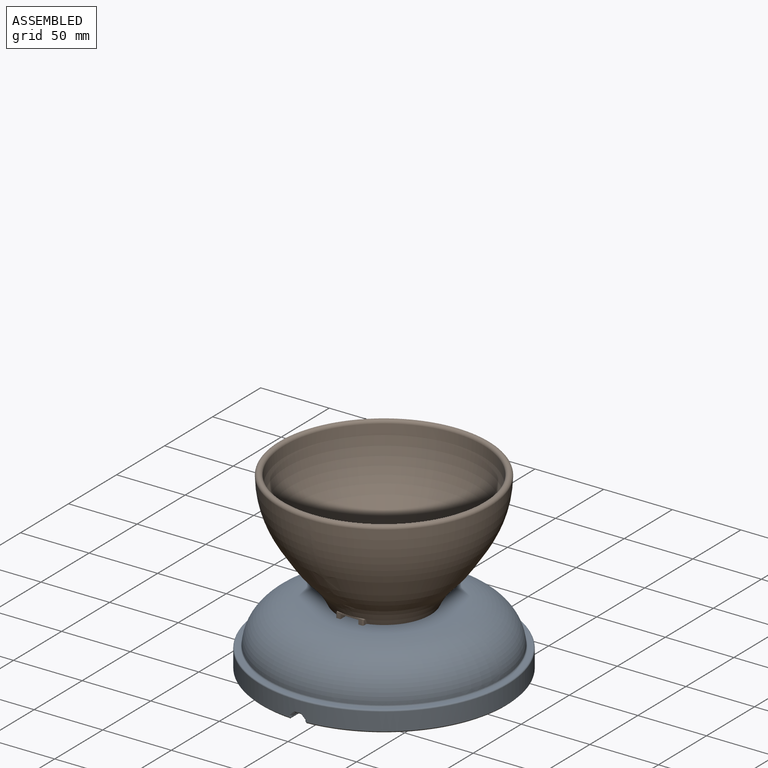
[diagram: assembled view]
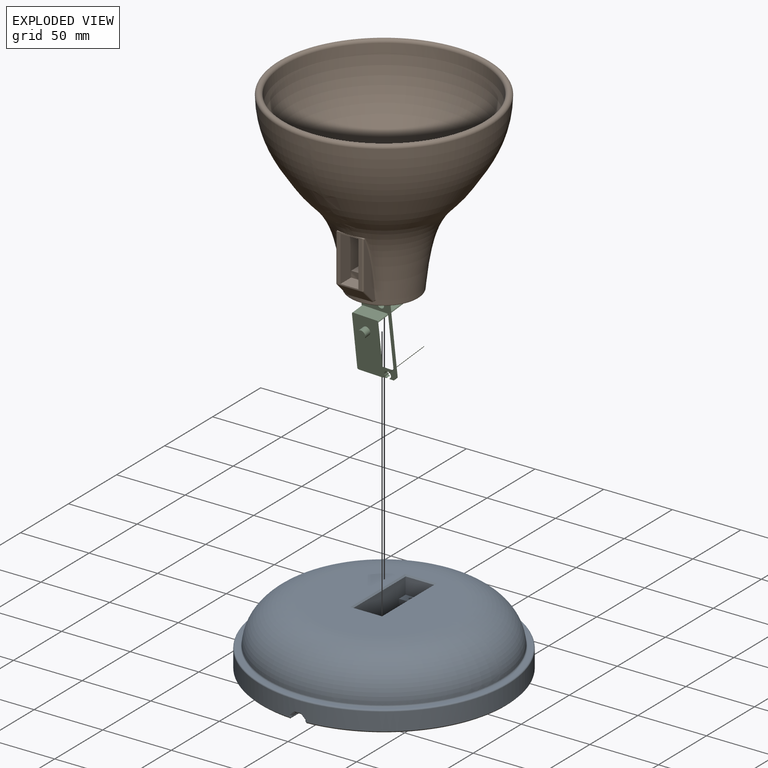
[diagram: exploded view]
GUIDED TOUR — FREECAD ASSEMBLY "Pixar Lamp Robot"

This assembly has 3 components, labeled P0..P2 below (a component is one placed body or linked part; the same part can appear more than once), held together by 0 modeled joints plus 3 derived contact edges. A joint is a constraint between two components; its type names the relative motion it leaves free:
  CONTACT — a derived adjacency edge — the two components touch in the source model (clearance under 2% of the assembly's diagonal); it is measured from the geometry, not a modeled constraint.
Axis/direction vectors are unit vectors and 'through' points are millimeter coordinates, both in the assembly's world frame.

MATES
  1. CONTACT "contact_0_1": P0 <-> P1, contact direction (0.000, 0.000, 1.000) through (12.60, -19.03, 0.00) mm (derived from contact, not a modeled constraint)
  2. CONTACT "contact_0_2": P0 <-> P2, contact direction (0.000, 0.000, 1.000) through (-3.83, -16.42, 31.75) mm (derived from contact, not a modeled constraint)
  3. CONTACT "contact_1_2": P1 <-> P2, contact direction (0.000, 0.000, -1.000) through (7.14, -3.46, -0.31) mm (derived from contact, not a modeled constraint)

ASSEMBLY ORDER
  1. P0 — the base component [order heuristic]
  2. P1 [order heuristic]
  3. P2 [order heuristic]
Order-tag legend:
  [order heuristic] — this assembly is geometrically interlocked (no collision-free removal order exists), so components are listed in mate-graph order; insertion feasibility is not verified.

Of the 3 components, 3 carry a construction recipe — the FreeCAD feature program (sketches with constraints, then the solid features that consume them) that regenerates the part from scratch, quoted from this document or from the linked companion document it references; the rest are supplied as boundary geometry only. The tour below walks the components in assembly order: each is shown spotlighted twice — in the assembled view, then in the exploded view, where a leader line traces a displaced component back to its assembled socket (components that stay in place when exploded have no leader line; saturated green if recipe-attached, orange if geometry-only; every other component desaturated gray) — followed by its recipe or geometry summary and the mates that hold it.
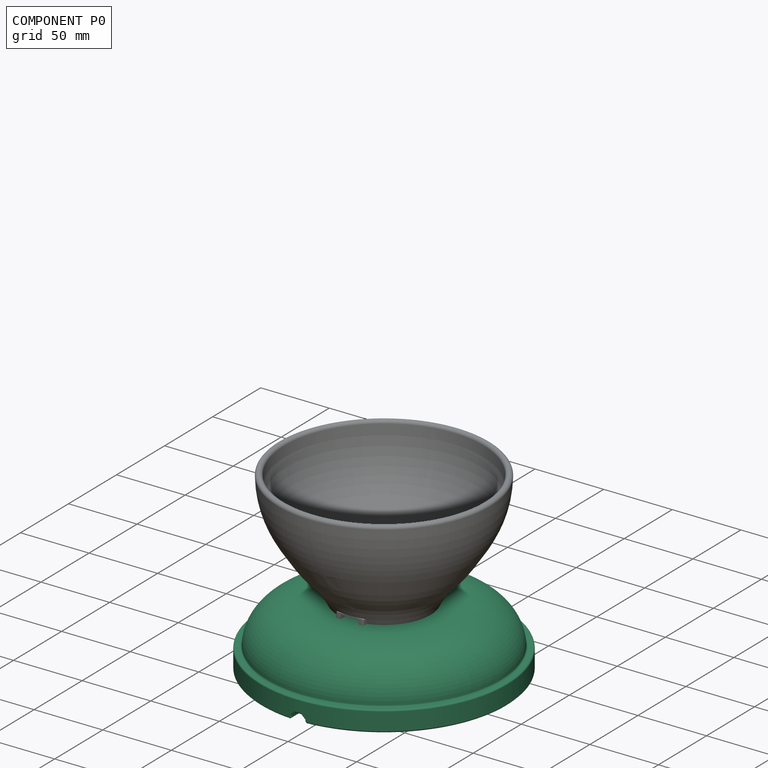
[diagram: component P0 — assembled]
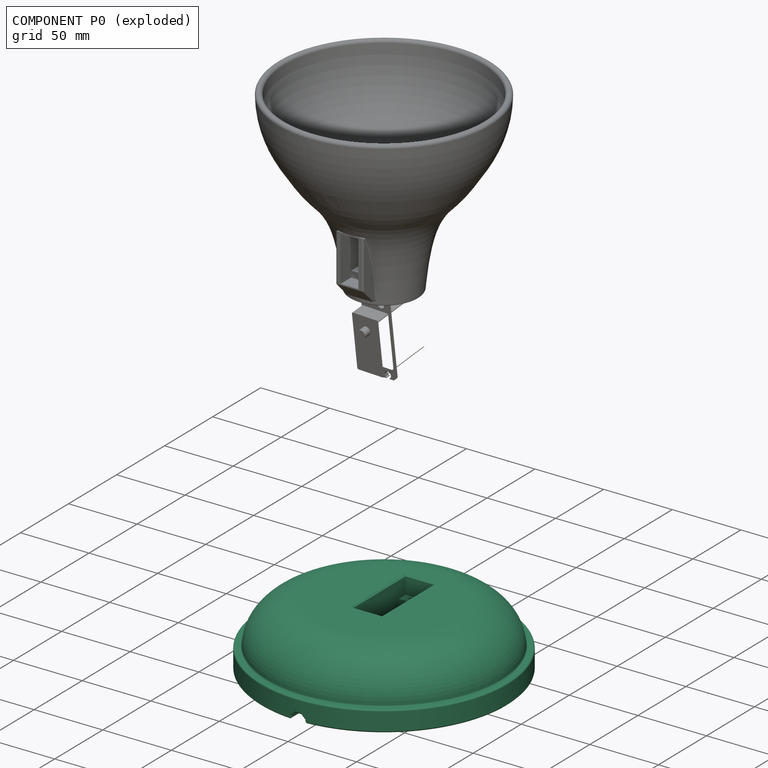
[diagram: component P0 — exploded]
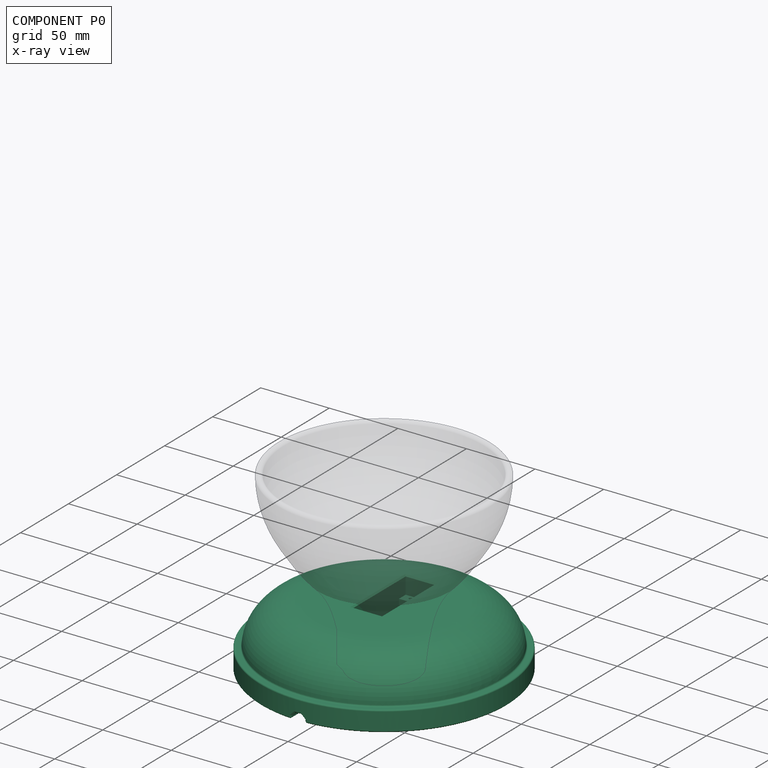
[diagram: component P0 — x-ray view]
COMPONENT P0 — recipe-attached ("Base", modeled in this document).
Held by: resting contact with P1 (derived edge); resting contact with P2 (derived edge).
Construction recipe (the document's own serialized feature program — sketch geometry with constraints, then the solid features built on it; lengths are millimeters unless a unit is written):

FEATURE [Sketcher::SketchObject] Sketch
  ArcFitTolerance = 1e-06
  AttachmentSupport = -> [XZ_Plane007]
  FullyConstrained = true
  MakeInternals = false
  MapMode = 5
  Placement = pos=(0,0,0) rot=(1,0,0;1.5708rad)
  sketch-geometry (10):
    g0: LineSegment StartX=0 StartY=0 StartZ=0 EndX=0 EndY=45 EndZ=0
    g1: LineSegment StartX=0 StartY=0 StartZ=0 EndX=90 EndY=0 EndZ=0
    g2: LineSegment StartX=90 StartY=0 StartZ=0 EndX=90 EndY=15 EndZ=0
    g3: ArcOfEllipse CenterX=50 CenterY=15 CenterZ=0 NormalX=0 NormalY=0 NormalZ=1 MajorRadius=35 MinorRadius=30 AngleXU=0 StartAngle=0 EndAngle=1.5708
    g4: LineSegment [constr] StartX=85 StartY=15 StartZ=0 EndX=15 EndY=15 EndZ=0
    g5: LineSegment [constr] StartX=50 StartY=45 StartZ=0 EndX=50 EndY=-15 EndZ=0
    g6: GeomPoint [constr] X=68.0278 Y=15 Z=0
    g7: GeomPoint [constr] X=31.9722 Y=15 Z=0
    g8: LineSegment StartX=90 StartY=15 StartZ=0 EndX=85 EndY=15 EndZ=0
    g9: LineSegment StartX=0 StartY=45 StartZ=0 EndX=50 EndY=45 EndZ=0
  constraints (21):
    c: Coincident(g0,g-1)
    c: PointOnObject(g0,g-2)
    c: Coincident(g1,g0)
    c: PointOnObject(g1,g-1)
    c: Coincident(g2,g1)
    c: Vertical(g2)
    c: InternalAlignment(g4-g7 -> g3) x4
    c: Coincident(g8,g2)
    c: Horizontal(g8)
    c: Coincident(g3,g8)
    c: Horizontal(g4)
    c: Coincident(g9,g0)
    c: Horizontal(g9)
    c: Coincident(g3,g9)
    c: Coincident(g5,g3)
    c: Distance(g1,g1) = 90
    c: DistanceY(g0,g0) = 45
    c: DistanceX(g9,g9) = 50
    c: Coincident(g3,g4)
    c: Distance(g8,g8) = 5
    c: Distance(g2,g2) = 15
FEATURE [PartDesign::Revolution] Revolution
  Angle = 360
  Angle2 = 60
  Axis = (0,2e-16,1)
  Base = (0,0,0)
  Placement = pos=(0,0,0) rot=(1,0,0;1.5708rad)
  Profile = -> Sketch
  ReferenceAxis = -> Sketch [V_Axis]
  Reversed = true
  Suppressed = false
  Type = 0
FEATURE [PartDesign::Fillet] Fillet
  Base = -> Revolution [Face1]
  BaseFeature = -> Revolution
  Placement = pos=(0,0,0) rot=(1,0,0;1.5708rad)
  Radius = 1
  SupportTransform = false
  Suppressed = false
  UseAllEdges = false
FEATURE [Sketcher::SketchObject] Sketch020  label="base servo body cutout"
  ArcFitTolerance = 1e-06
  FullyConstrained = false
  MakeInternals = false
  MapMode = 5
  Placement = pos=(0,1e-14,45) rot=(0,0,1;3.14159rad)
  sketch-geometry (9):
    g0: LineSegment StartX=-10.5 StartY=-37.5 StartZ=0 EndX=10.5 EndY=-37.5 EndZ=0
    g1: LineSegment StartX=10.5 StartY=-37.5 StartZ=0 EndX=10.5 EndY=17.5 EndZ=0
    g2: LineSegment StartX=-10.5 StartY=17.5 StartZ=0 EndX=-10.5 EndY=-37.5 EndZ=0
    g3: LineSegment StartX=10.5 StartY=17.5 StartZ=0 EndX=0 EndY=17.5 EndZ=0
    g4: LineSegment StartX=0 StartY=17.5 StartZ=0 EndX=-10.5 EndY=17.5 EndZ=0
    g5: LineSegment [constr] StartX=-10.5 StartY=10 StartZ=0 EndX=10.5 EndY=10 EndZ=0
    g6: LineSegment [constr] StartX=-10.5 StartY=-30 StartZ=0 EndX=10.5 EndY=-30 EndZ=0
    g7: LineSegment [constr] StartX=-5.40577 StartY=-30 StartZ=0 EndX=-5.40577 EndY=-37.5 EndZ=0
    g8: LineSegment [constr] StartX=-2.00214 StartY=10 StartZ=0 EndX=-2.00214 EndY=17.5 EndZ=0
  constraints (29):
    c: Coincident(g0,g1)
    c: Coincident(g1,g3)
    c: Coincident(g4,g2)
    c: Coincident(g2,g0)
    c: Horizontal(g0)
    c: Vertical(g1)
    c: Vertical(g2)
    c: DistanceY(g1,g1) = 55
    c: Distance(g3,g4) = 21
    c: Coincident(g3,g4)
    c: Horizontal(g3)
    c: Horizontal(g4)
    c: Equal(g4,g3)
    c: PointOnObject(g3,g-2)
    c: PointOnObject(g5,g2)
    c: PointOnObject(g5,g1)
    c: Horizontal(g5)
    c: PointOnObject(g6,g2)
    c: PointOnObject(g6,g1)
    c: Horizontal(g6)
    c: PointOnObject(g7,g6)
    c: PointOnObject(g7,g0)
    c: PointOnObject(g8,g5)
    c: PointOnObject(g8,g3)
    c: Vertical(g8)
    c: Equal(g8,g7)
    c: Perpendicular(g0,g7)
    c: Distance(g-1,g5) = 10
    c: DistanceY(g6,g5) = 40
FEATURE [PartDesign::Pocket] Pocket
  BaseFeature = -> Fillet
  Direction = (0,0,-1)
  Length = 13
  Length2 = 5
  Placement = pos=(0,0,0) rot=(1,0,0;1.5708rad)
  Profile = -> Sketch020
  ReferenceAxis = -> Sketch020 [N_Axis]
  Suppressed = false
  Type = 0
FEATURE [Sketcher::SketchObject] Sketch025
  ArcFitTolerance = 1e-06
  AttachmentSupport = -> [Pocket]
  ExternalGeometry = -> [Pocket]
  FullyConstrained = true
  MakeInternals = false
  MapMode = 5
  Placement = pos=(0,0,32) rot=(0,0,1;3.14159rad)
  sketch-geometry (8):
    g0: LineSegment StartX=-10.5 StartY=-30.5 StartZ=0 EndX=10.5 EndY=-30.5 EndZ=0
    g1: LineSegment StartX=10.5 StartY=-30.5 StartZ=0 EndX=10.5 EndY=10.5 EndZ=0
    g2: LineSegment StartX=10.5 StartY=10.5 StartZ=0 EndX=-1.8e-15 EndY=10.5 EndZ=0
    g3: LineSegment StartX=-10.5 StartY=10.5 StartZ=0 EndX=-10.5 EndY=-30.5 EndZ=0
    g4: LineSegment [constr] StartX=-10.5 StartY=-37.5 StartZ=0 EndX=-10.5 EndY=-30.5 EndZ=0
    g5: LineSegment [constr] StartX=-10.5 StartY=10.5 StartZ=0 EndX=-10.5 EndY=17.5 EndZ=0
    g6: LineSegment [constr] StartX=-10.5 StartY=17.5 StartZ=0 EndX=10.5 EndY=17.5 EndZ=0
    g7: LineSegment StartX=-1.8e-15 StartY=10.5 StartZ=0 EndX=-10.5 EndY=10.5 EndZ=0
  constraints (21):
    c: Coincident(g0,g1)
    c: Coincident(g7,g3)
    c: Coincident(g3,g0)
    c: Horizontal(g0)
    c: Horizontal(g2)
    c: Vertical(g1)
    c: Vertical(g3)
    c: PointOnObject(g0,g-3)
    c: PointOnObject(g1,g-4)
    c: Coincident(g4,g-3)
    c: Coincident(g4,g0)
    c: Coincident(g5,g7)
    c: Coincident(g5,g-3)
    c: Equal(g5,g4)
    c: Coincident(g6,g5)
    c: Coincident(g6,g-4)
    c: DistanceY(g1,g1) = 41
    c: Equal(g7,g2)
    c: Horizontal(g7)
    c: Coincident(g7,g2)
    c: Coincident(g2,g1)
FEATURE [PartDesign::Pocket] Pocket012
  BaseFeature = -> Pocket
  Direction = (0,0,-1)
  Length = 0
  Length2 = 5
  Placement = pos=(0,0,0) rot=(1,0,0;1.5708rad)
  Profile = -> Sketch025
  ReferenceAxis = -> Sketch025 [N_Axis]
  Suppressed = false
  Type = 3
  UpToFace = -> Pocket [Face6]
FEATURE [Sketcher::SketchObject] Sketch026
  ArcFitTolerance = 1e-06
  AttachmentSupport = -> [Pocket012]
  FullyConstrained = true
  MakeInternals = false
  MapMode = 5
  Placement = pos=(0,0,32) rot=(0,0,1;3.14159rad)
  sketch-geometry (14):
    g0: LineSegment [constr] StartX=-5 StartY=-34.75 StartZ=0 EndX=5 EndY=-34.75 EndZ=0
    g1: LineSegment [constr] StartX=5 StartY=14.75 StartZ=0 EndX=-5 EndY=14.75 EndZ=0
    g2: LineSegment [constr] StartX=-5 StartY=14.75 StartZ=0 EndX=-5 EndY=10 EndZ=0
    g3: LineSegment [constr] StartX=5 StartY=10 StartZ=0 EndX=5 EndY=14.75 EndZ=0
    g4: LineSegment [constr] StartX=-5 StartY=10 StartZ=0 EndX=-5 EndY=-30 EndZ=0
    g5: LineSegment [constr] StartX=-5 StartY=-30 StartZ=0 EndX=-5 EndY=-34.75 EndZ=0
    g6: LineSegment [constr] StartX=5 StartY=-34.75 StartZ=0 EndX=5 EndY=-30 EndZ=0
    g7: LineSegment [constr] StartX=5 StartY=-30 StartZ=0 EndX=5 EndY=10 EndZ=0
    g8: LineSegment [constr] StartX=-5 StartY=10 StartZ=0 EndX=5 EndY=10 EndZ=0
    g9: LineSegment [constr] StartX=-5 StartY=-30 StartZ=0 EndX=5 EndY=-30 EndZ=0
    g10: Circle CenterX=5 CenterY=14.75 CenterZ=0 NormalX=0 NormalY=0 NormalZ=1 AngleXU=0 Radius=1.125
    g11: Circle CenterX=-5 CenterY=14.75 CenterZ=0 NormalX=0 NormalY=0 NormalZ=1 AngleXU=0 Radius=1.125
    g12: Circle CenterX=5 CenterY=-34.75 CenterZ=0 NormalX=0 NormalY=0 NormalZ=1 AngleXU=0 Radius=1.125
    g13: Circle CenterX=-5 CenterY=-34.75 CenterZ=0 NormalX=0 NormalY=0 NormalZ=1 AngleXU=0 Radius=1.125
  constraints (35):
    c: Coincident(g0,g6)
    c: Coincident(g3,g1)
    c: Coincident(g1,g2)
    c: Coincident(g5,g0)
    c: Horizontal(g0)
    c: Distance(g2,g5) = 49.5
    c: DistanceX(g1,g1) = 10
    c: Symmetric(g1,g3,g-2)
    c: Coincident(g2,g4)
    c: Vertical(g2)
    c: Coincident(g7,g3)
    c: Vertical(g3)
    c: Coincident(g4,g5)
    c: Vertical(g4)
    c: Vertical(g5)
    c: Coincident(g6,g7)
    c: Vertical(g6)
    c: Vertical(g7)
    c: Coincident(g8,g2)
    c: Coincident(g8,g3)
    c: Coincident(g9,g4)
    c: Coincident(g9,g6)
    c: Horizontal(g9)
    c: Horizontal(g8)
    c: Equal(g3,g6)
    c: DistanceY(g7,g7) = 40
    c: Distance(g-1,g8) = 10
    c: Coincident(g10,g1)
    c: Coincident(g11,g1)
    c: Coincident(g12,g0)
    c: Coincident(g13,g0)
    c: Equal(g11,g10)
    c: Equal(g13,g12)
    c: Equal(g10,g12)
    c: Diameter(g10) = 2.25
FEATURE [PartDesign::Pocket] Pocket013
  BaseFeature = -> Pocket012
  Direction = (0,0,-1)
  Length = 10
  Length2 = 5
  Placement = pos=(0,0,0) rot=(1,0,0;1.5708rad)
  Profile = -> Sketch026
  ReferenceAxis = -> Sketch026 [N_Axis]
  Suppressed = false
  Type = 0
FEATURE [Sketcher::SketchObject] Sketch027
  ArcFitTolerance = 1e-06
  AttachmentSupport = -> [YZ_Plane007]
  ExternalGeometry = -> [Pocket013]
  FullyConstrained = true
  MakeInternals = false
  MapMode = 5
  Placement = pos=(0,0,0) rot=(0.57735,0.57735,0.57735;2.0944rad)
  sketch-geometry (16):
    g0: LineSegment [constr] StartX=-10.5 StartY=32 StartZ=0 EndX=-17.5 EndY=32 EndZ=0
    g1: LineSegment [constr] StartX=-17.5 StartY=32 StartZ=0 EndX=-17.5 EndY=25 EndZ=0
    g2: LineSegment [constr] StartX=-17.5 StartY=25 StartZ=0 EndX=-10.5 EndY=25 EndZ=0
    g3: LineSegment [constr] StartX=-10.5 StartY=25 StartZ=0 EndX=-10.5 EndY=32 EndZ=0
    g4: LineSegment [constr] StartX=37.5 StartY=32 StartZ=0 EndX=30.5 EndY=32 EndZ=0
    g5: LineSegment [constr] StartX=30.5 StartY=32 StartZ=0 EndX=30.5 EndY=25 EndZ=0
    g6: LineSegment [constr] StartX=30.5 StartY=25 StartZ=0 EndX=37.5 EndY=25 EndZ=0
    g7: LineSegment [constr] StartX=37.5 StartY=25 StartZ=0 EndX=37.5 EndY=32 EndZ=0
    g8: LineSegment StartX=-10.5 StartY=25 StartZ=0 EndX=-17.5 EndY=18 EndZ=0
    g9: LineSegment StartX=-17.5 StartY=18 StartZ=0 EndX=-17.5 EndY=0 EndZ=0
    g10: LineSegment StartX=-17.5 StartY=0 StartZ=0 EndX=-10.5 EndY=7.1e-15 EndZ=0
    g11: LineSegment StartX=-10.5 StartY=7.1e-15 StartZ=0 EndX=-10.5 EndY=25 EndZ=0
    g12: LineSegment StartX=30.5 StartY=-7.1e-15 StartZ=0 EndX=37.5 EndY=-7.1e-15 EndZ=0
    g13: LineSegment StartX=37.5 StartY=-7.1e-15 StartZ=0 EndX=37.5 EndY=18 EndZ=0
    g14: LineSegment StartX=30.5 StartY=25 StartZ=0 EndX=30.5 EndY=-7.1e-15 EndZ=0
    g15: LineSegment StartX=30.5 StartY=25 StartZ=0 EndX=37.5 EndY=18 EndZ=0
  constraints (40):
    c: Coincident(g0,g1)
    c: Coincident(g1,g2)
    c: Coincident(g2,g3)
    c: Coincident(g3,g0)
    c: Horizontal(g0)
    c: Horizontal(g2)
    c: Vertical(g1)
    c: Vertical(g3)
    c: Coincident(g0,g-4)
    c: PointOnObject(g1,g-3)
    c: Coincident(g4,g5)
    c: Coincident(g5,g6)
    c: Coincident(g6,g7)
    c: Coincident(g7,g4)
    c: Horizontal(g4)
    c: Horizontal(g6)
    c: Vertical(g5)
    c: Vertical(g7)
    c: Coincident(g4,g-6)
    c: PointOnObject(g5,g-5)
    c: Equal(g6,g7)
    c: Equal(g2,g3)
    c: Angle(g-1,g8) = -2.35619
    c: Coincident(g8,g2)
    c: PointOnObject(g8,g-3)
    c: Coincident(g8,g9)
    c: Coincident(g9,g-3)
    c: Coincident(g9,g10)
    c: Coincident(g10,g-4)
    c: Coincident(g10,g11)
    c: Coincident(g11,g2)
    c: Coincident(g12,g13)
    c: Coincident(g14,g12)
    c: Horizontal(g12)
    c: Coincident(g12,g-5)
    c: Angle(g-1,g15) = -0.785398
    c: Coincident(g15,g5)
    c: Coincident(g13,g15)
    c: Coincident(g14,g5)
    c: Tangent(g7,g13)
FEATURE [PartDesign::Pocket] Pocket014
  BaseFeature = -> Pocket013
  Direction = (-1,0,0)
  Length = 21
  Length2 = 5
  Midplane = true
  Placement = pos=(0,0,0) rot=(1,0,0;1.5708rad)
  Profile = -> Sketch027
  ReferenceAxis = -> Sketch027 [N_Axis]
  Suppressed = false
  Type = 0
FEATURE [PartDesign::Chamfer] Chamfer004
  Angle = 45
  Base = -> Pocket014 [Edge20,Edge19,Edge23,Edge22,Edge21]
  BaseFeature = -> Pocket014
  ChamferType = 0
  FlipDirection = false
  Placement = pos=(0,0,0) rot=(1,0,0;1.5708rad)
  Size = 1
  Size2 = 1
  SupportTransform = false
  Suppressed = false
  UseAllEdges = false
FEATURE [Sketcher::SketchObject] Sketch028
  ArcFitTolerance = 1e-06
  AttachmentSupport = -> [Chamfer004]
  FullyConstrained = true
  MakeInternals = false
  MapMode = 5
  Placement = pos=(0,-17.5,3.8e-15) rot=(-1,0,0;1.5708rad)
  sketch-geometry (9):
    g0: LineSegment StartX=5 StartY=2.07107 StartZ=0 EndX=2.07107 EndY=5 EndZ=0
    g1: LineSegment StartX=2.07107 StartY=5 StartZ=0 EndX=-2.07107 EndY=5 EndZ=0
    g2: LineSegment StartX=-2.07107 StartY=5 StartZ=0 EndX=-5 EndY=2.07107 EndZ=0
    g3: LineSegment StartX=-5 StartY=2.07107 StartZ=0 EndX=-5 EndY=-2.07107 EndZ=0
    g4: LineSegment StartX=-5 StartY=-2.07107 StartZ=0 EndX=-2.07107 EndY=-5 EndZ=0
    g5: LineSegment StartX=-2.07107 StartY=-5 StartZ=0 EndX=2.07107 EndY=-5 EndZ=0
    g6: LineSegment StartX=2.07107 StartY=-5 StartZ=0 EndX=5 EndY=-2.07107 EndZ=0
    g7: LineSegment StartX=5 StartY=-2.07107 StartZ=0 EndX=5 EndY=2.07107 EndZ=0
    g8: Circle [constr] CenterX=0 CenterY=0 CenterZ=0 NormalX=0 NormalY=0 NormalZ=1 AngleXU=0 Radius=5.41196
  constraints (20):
    c: Coincident(g0,g1)
    c: Coincident(g1,g2)
    c: Coincident(g2,g3)
    c: Coincident(g3,g4)
    c: Coincident(g4,g5)
    c: Coincident(g5,g6)
    c: Coincident(g6,g7)
    c: Coincident(g7,g0)
    c: Equal(g0, g1-g7) x7
    c: PointOnObject(g0,g8)
    c: PointOnObject(g1,g8)
    c: PointOnObject(g2,g8)
    c: PointOnObject(g3,g8)
    c: PointOnObject(g4,g8)
    c: PointOnObject(g5,g8)
    c: PointOnObject(g6,g8)
    c: PointOnObject(g7,g8)
    c: Coincident(g8,g-1)
    c: Horizontal(g5)
    c: DistanceX(g3,g6) = 10
FEATURE [PartDesign::Pocket] Pocket015
  BaseFeature = -> Chamfer004
  Direction = (0,-1,-2e-16)
  Length = 23
  Length2 = 5
  Placement = pos=(0,0,0) rot=(1,0,0;1.5708rad)
  Profile = -> Sketch028
  ReferenceAxis = -> Sketch028 [N_Axis]
  Suppressed = false
  Type = 2
FEATURE [PartDesign::Chamfer] Chamfer
  Angle = 45
  Base = -> Pocket015 [Face24,Edge94,Edge95,Edge96,Edge97,Edge98]
  BaseFeature = -> Pocket015
  ChamferType = 0
  FlipDirection = false
  Placement = pos=(0,0,0) rot=(1,0,0;1.5708rad)
  Size = 1
  Size2 = 1
  SupportTransform = false
  Suppressed = false
  UseAllEdges = false
FEATURE [PartDesign::Body] Body
  AllowCompound = false
  Group = -> [Sketch,Revolution,Fillet,Sketch020,Pocket,Sketch025,Pocket012,Sketch026,Pocket013,Sketch027,Pocket014,Chamfer004,Sketch028,Pocket015,Chamfer]
  Origin = -> Origin007
  Tip = -> Chamfer
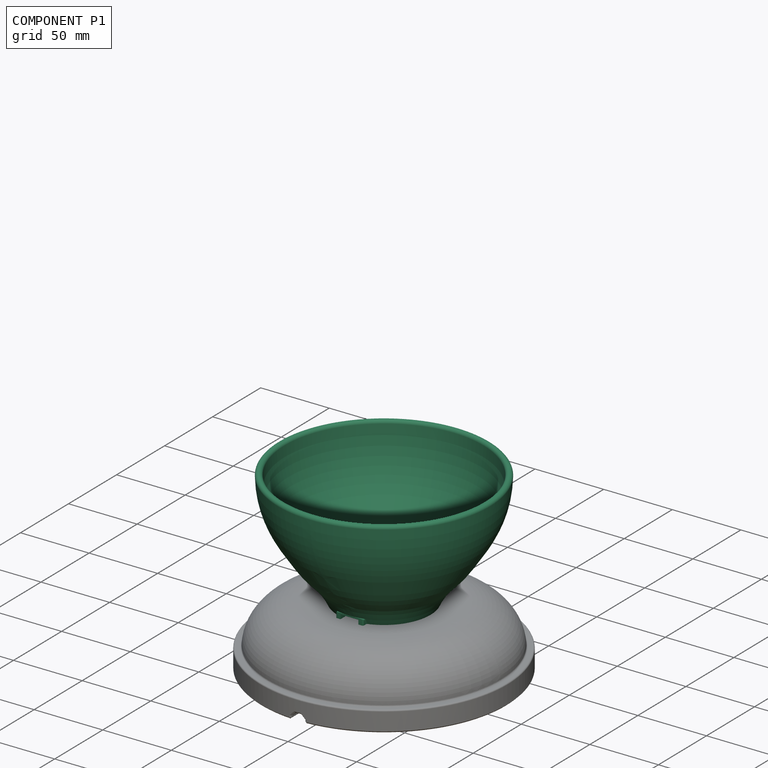
[diagram: component P1 — assembled]
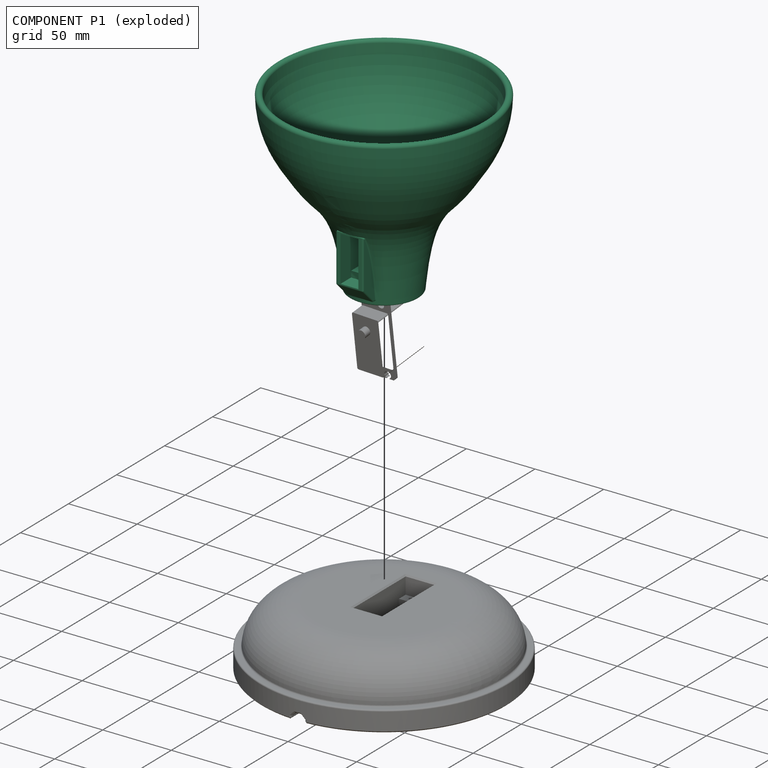
[diagram: component P1 — exploded]
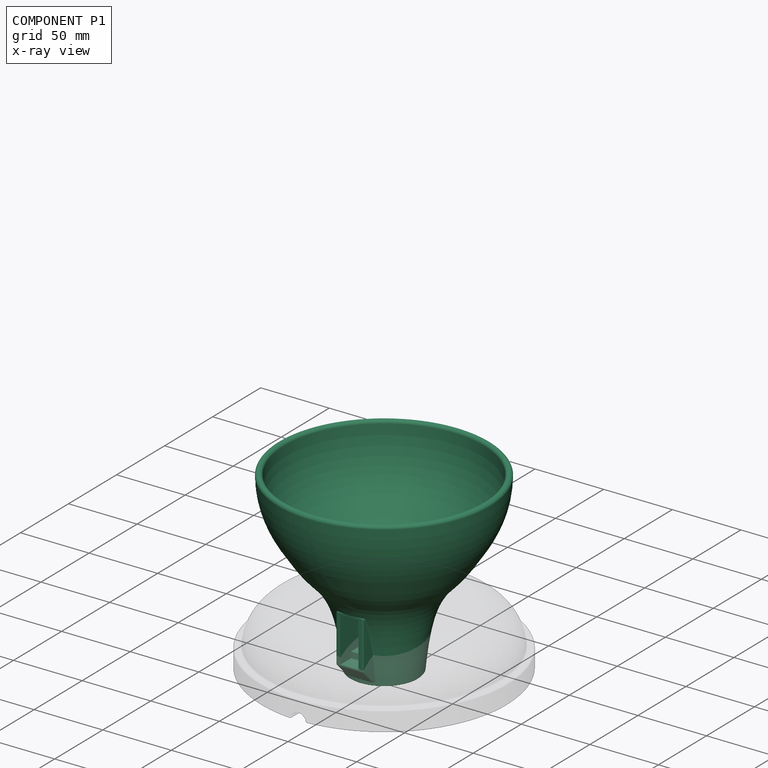
[diagram: component P1 — x-ray view]
COMPONENT P1 — recipe-attached ("Lampshade001", modeled in this document).
Held by: resting contact with P0 (derived edge); resting contact with P2 (derived edge).
Construction recipe (the document's own serialized feature program — sketch geometry with constraints, then the solid features built on it; lengths are millimeters unless a unit is written):

FEATURE [Sketcher::SketchObject] Sketch010
  ArcFitTolerance = 0
  FullyConstrained = false
  MakeInternals = false
  Placement = pos=(0,0,0) rot=(0,1,0;1.5708rad)
  sketch-geometry (33):
    g0: GeomPoint [constr] X=-127.837 Y=-77.1037 Z=0
    g1: BSplineCurve PolesCount=7 KnotsCount=5 Degree=3 IsPeriodic=0
    g2-g8: Circle [constr] x7 (B-spline internal-alignment scaffolding for g1; pole/knot coordinates omitted)
    g9-g13: GeomPoint [constr] x5 (B-spline internal-alignment scaffolding for g1; pole/knot coordinates omitted)
    g14: LineSegment [constr] StartX=-127.837 StartY=-77.1037 StartZ=0 EndX=-127.837 EndY=-72.4339 EndZ=0
    g15: BSplineCurve PolesCount=6 KnotsCount=4 Degree=3 IsPeriodic=0
    g16: ArcOfCircle CenterX=-127.837 CenterY=-74.7688 CenterZ=0 NormalX=0 NormalY=0 NormalZ=1 AngleXU=0 Radius=2.33488 StartAngle=1.5708 EndAngle=4.71239
    g17: LineSegment StartX=0 StartY=0 StartZ=0 EndX=0 EndY=-24.806 EndZ=0
    g18: LineSegment StartX=0 StartY=0 StartZ=0 EndX=-51.1058 EndY=0 EndZ=0
    g19: LineSegment StartX=-51.1058 StartY=0 StartZ=0 EndX=-51.1058 EndY=-33 EndZ=0
    g20: LineSegment StartX=-51.1058 StartY=-33 StartZ=0 EndX=-68.1058 EndY=-33 EndZ=0
    g21: LineSegment StartX=-68.1058 StartY=-33 StartZ=0 EndX=-68.1058 EndY=-35 EndZ=0
    g22: LineSegment StartX=-68.1058 StartY=-35 StartZ=0 EndX=-54.1739 EndY=-35 EndZ=0
    g23-g28: Circle [constr] x6 (B-spline internal-alignment scaffolding for g15; pole/knot coordinates omitted)
    g29-g32: GeomPoint [constr] x4 (B-spline internal-alignment scaffolding for g15; pole/knot coordinates omitted)
  constraints (53):
    c: Block(g1)
    c: InternalAlignment(g2,g1)
    c: Weight(g2) = 1
    c: InternalAlignment(g3,g1)
    c: Equal(g3,g2)
    c: InternalAlignment(g4,g1)
    c: Equal(g4,g2)
    c: InternalAlignment(g5,g1)
    c: Equal(g5,g2)
    c: InternalAlignment(g6,g1)
    c: Equal(g6,g2)
    c: InternalAlignment(g7,g1)
    c: Equal(g7,g2)
    c: InternalAlignment(g8,g1)
    c: Equal(g8,g2)
    c: InternalAlignment(g9-g13 -> g1) x5
    c: Coincident(g14,g1)
    c: Vertical(g14)
    c: Block(g15)
    c: PointOnObject(g15,g16)
    c: PointOnObject(g16,g14)
    c: Coincident(g16,g14)
    c: Coincident(g16,g1)
    c: Coincident(g17,g-1)
    c: Coincident(g17,g1)
    c: Vertical(g17)
    c: Coincident(g18,g17)
    c: PointOnObject(g18,g-1)
    c: Coincident(g19,g18)
    c: Vertical(g19)
    c: Distance(g19) = 33  'Webcam Carveout Radius'
    c: Coincident(g20,g19)
    c: Horizontal(g20)
    c: Coincident(g21,g20)
    c: Vertical(g21)
    c: Coincident(g22,g21)
    c: Horizontal(g22)
    c: Distance(g21) = 2
    c: Distance(g20,g19) = 17
    c: Coincident(g15,g22)
    c: InternalAlignment(g23,g15)
    c: Weight(g23) = 1
    c: InternalAlignment(g24,g15)
    c: Equal(g24,g23)
    c: InternalAlignment(g25,g15)
    c: Equal(g25,g23)
    c: InternalAlignment(g26,g15)
    c: Equal(g26,g23)
    c: InternalAlignment(g27,g15)
    c: Equal(g27,g23)
    c: InternalAlignment(g28,g15)
    c: Equal(g28,g23)
    c: InternalAlignment(g29-g32 -> g15) x4
FEATURE [PartDesign::Revolution] Revolution001
  Angle = 360
  Angle2 = 60
  Axis = (0,0,-1)
  Base = (0,0,0)
  Placement = pos=(0,0,0) rot=(0,1,0;1.5708rad)
  Profile = -> Sketch010
  ReferenceAxis = -> Sketch010 [H_Axis]
  Reversed = true
  Suppressed = false
  Type = 0
FEATURE [Sketcher::SketchObject] Sketch011  label="Screw Posts"
  ArcFitTolerance = 0
  AttachmentOffset = pos=(0,0,0) rot=(0,0,1;1.5708rad)
  AttachmentSupport = -> [Revolution001]
  FullyConstrained = true
  MakeInternals = false
  MapMode = 5
  Placement = pos=(5.6e-15,0,51.1058) rot=(0,0,1;0rad)
  sketch-geometry (7):
    g0: Circle [constr] CenterX=0 CenterY=0 CenterZ=0 NormalX=0 NormalY=0 NormalZ=1 AngleXU=0 Radius=21
    g1: GeomPoint [constr] X=-21 Y=0 Z=0
    g2: GeomPoint [constr] X=0 Y=21 Z=0
    g3: GeomPoint [constr] X=21 Y=0 Z=0
    g4: Circle CenterX=0 CenterY=21 CenterZ=0 NormalX=0 NormalY=0 NormalZ=1 AngleXU=0 Radius=5
    g5: Circle CenterX=21 CenterY=0 CenterZ=0 NormalX=0 NormalY=0 NormalZ=1 AngleXU=0 Radius=5
    g6: Circle CenterX=-21 CenterY=0 CenterZ=0 NormalX=0 NormalY=0 NormalZ=1 AngleXU=0 Radius=5
  constraints (14):
    c: Coincident(g0,g-1)
    c: Diameter(g0) = 42
    c: PointOnObject(g1,g0)
    c: PointOnObject(g1,g-1)
    c: PointOnObject(g2,g0)
    c: PointOnObject(g2,g-2)
    c: PointOnObject(g3,g0)
    c: PointOnObject(g3,g-1)
    c: Coincident(g4,g2)
    c: Coincident(g5,g3)
    c: Coincident(g6,g1)
    c: Diameter(g6) = 10
    c: Equal(g6,g4)
    c: Equal(g4,g5)
FEATURE [PartDesign::Pad] Pad003  label="PCB Mounting Posts"
  BaseFeature = -> Revolution001
  Direction = (0,0,1)
  Length = 5
  Length2 = 10
  Placement = pos=(0,0,0) rot=(0,1,0;1.5708rad)
  Profile = -> Sketch011
  ReferenceAxis = -> Sketch011 [N_Axis]
  Suppressed = false
  Type = 0
FEATURE [Sketcher::SketchObject] Sketch012  label="Holes for PCB Posts"
  ArcFitTolerance = 0
  AttachmentSupport = -> [Pad003]
  ExternalGeometry = -> [Pad003]
  FullyConstrained = true
  MakeInternals = false
  MapMode = 5
  Placement = pos=(0,0,56.1058) rot=(0,0,-1;1.5708rad)
  sketch-geometry (3):
    g0: Circle CenterX=0 CenterY=-21 CenterZ=0 NormalX=0 NormalY=0 NormalZ=1 AngleXU=0 Radius=0.875
    g1: Circle CenterX=0 CenterY=21 CenterZ=0 NormalX=0 NormalY=0 NormalZ=1 AngleXU=0 Radius=0.875
    g2: Circle CenterX=-21 CenterY=1.78e-14 CenterZ=0 NormalX=0 NormalY=0 NormalZ=1 AngleXU=0 Radius=0.875
  constraints (6):
    c: Coincident(g0,g-3)
    c: Coincident(g1,g-4)
    c: Coincident(g2,g-5)
    c: Equal(g0,g1)
    c: Equal(g1,g2)
    c: Diameter(g2) = 1.75
FEATURE [PartDesign::Pocket] Pocket005
  BaseFeature = -> Pad003
  Direction = (0,0,-1)
  Length = 7
  Length2 = 5
  Placement = pos=(0,0,0) rot=(0,1,0;1.5708rad)
  Profile = -> Sketch012
  ReferenceAxis = -> Sketch012 [N_Axis]
  Suppressed = false
  Type = 0
FEATURE [PartDesign::Chamfer] Chamfer002
  Angle = 45
  Base = -> Pocket005 [Edge10]
  BaseFeature = -> Pocket005
  ChamferType = 0
  FlipDirection = false
  Placement = pos=(0,0,0) rot=(0,1,0;1.5708rad)
  Size = 1
  Size2 = 1
  SupportTransform = false
  Suppressed = false
  UseAllEdges = false
FEATURE [PartDesign::Fillet] Fillet004
  Base = -> Chamfer002 [Edge11,Edge17,Edge12,Edge19,Edge13,Edge21,Edge8]
  BaseFeature = -> Chamfer002
  Placement = pos=(0,0,0) rot=(0,1,0;1.5708rad)
  Radius = 1
  SupportTransform = false
  Suppressed = false
  UseAllEdges = false
FEATURE [PartDesign::Fillet] Fillet005
  Base = -> Fillet004 [Edge18]
  BaseFeature = -> Fillet004
  Placement = pos=(0,0,0) rot=(0,1,0;1.5708rad)
  Radius = 1
  SupportTransform = false
  Suppressed = false
  UseAllEdges = false
FEATURE [Sketcher::SketchObject] Sketch013
  ArcFitTolerance = 0
  AttachmentSupport = -> [YZ_Plane005]
  ExternalGeometry = -> [Sketch010]
  FullyConstrained = true
  MakeInternals = false
  MapMode = 5
  Placement = pos=(0,0,0) rot=(0.57735,0.57735,0.57735;2.0944rad)
  sketch-geometry (5):
    g0: LineSegment StartX=-25.1001 StartY=3.20607 StartZ=0 EndX=-5.99989 EndY=3.20607 EndZ=0
    g1: LineSegment StartX=-5.99989 StartY=3.20607 StartZ=0 EndX=-5.99989 EndY=49.1058 EndZ=0
    g2: LineSegment StartX=-5.99989 StartY=49.1058 StartZ=0 EndX=-35.9999 EndY=49.1058 EndZ=0
    g3: LineSegment StartX=-35.9999 StartY=49.1058 StartZ=0 EndX=-35.9999 EndY=14.1058 EndZ=0
    g4: LineSegment StartX=-35.9999 StartY=14.1058 StartZ=0 EndX=-25.1001 EndY=3.20607 EndZ=0
  constraints (16):
    c: Coincident(g0,g1)
    c: Coincident(g1,g2)
    c: Coincident(g2,g3)
    c: Horizontal(g0)
    c: Horizontal(g2)
    c: Vertical(g1)
    c: Vertical(g3)
    c: Angle(g0,g4) = 2.35619
    c: Coincident(g3,g4)
    c: Coincident(g0,g4)
    c: Distance(g2) = 30
    c: Distance(g3) = 35
    c: PointOnObject(g2,g-3)
    c: PointOnObject(g0,g-3)
    c: DistanceY(g1,g-5) = 2
    c: DistanceX(g0,g-1) = 5.99989
FEATURE [PartDesign::Pad] Pad004  label="Servo mounting point"
  BaseFeature = -> Fillet005
  Direction = (1,0,0)
  Length = 20
  Length2 = 10
  Midplane = true
  Placement = pos=(0,0,0) rot=(0,1,0;1.5708rad)
  Profile = -> Sketch013
  ReferenceAxis = -> Sketch013 [N_Axis]
  Suppressed = false
  Type = 0
FEATURE [Sketcher::SketchObject] Sketch014  label="Servo mounting carveout"
  ArcFitTolerance = 0
  AttachmentSupport = -> [Pad004]
  ExternalGeometry = -> [Pad004]
  FullyConstrained = true
  MakeInternals = false
  MapMode = 5
  Placement = pos=(0,-35.9999,0) rot=(0.57735,0.57735,-0.57735;2.0944rad)
  sketch-geometry (8):
    g0: LineSegment [constr] StartX=-49.1058 StartY=-10 StartZ=0 EndX=-14.1058 EndY=10 EndZ=0
    g1: LineSegment [constr] StartX=-14.1058 StartY=-10 StartZ=0 EndX=-49.1058 EndY=10 EndZ=0
    g2: GeomPoint [constr] X=-31.6058 Y=-6.2e-15 Z=0
    g3: LineSegment StartX=-15.1058 StartY=-6.5 StartZ=0 EndX=-15.1058 EndY=6.5 EndZ=0
    g4: LineSegment StartX=-15.1058 StartY=6.5 StartZ=0 EndX=-48.1058 EndY=6.5 EndZ=0
    g5: LineSegment StartX=-48.1058 StartY=6.5 StartZ=0 EndX=-48.1058 EndY=-6.5 EndZ=0
    g6: LineSegment StartX=-48.1058 StartY=-6.5 StartZ=0 EndX=-15.1058 EndY=-6.5 EndZ=0
    g7: GeomPoint [constr] X=-31.6058 Y=-6.2e-15 Z=0
  constraints (18):
    c: Coincident(g0,g-4)
    c: Coincident(g0,g-7)
    c: Coincident(g1,g-7)
    c: Coincident(g1,g-6)
    c: PointOnObject(g2,g0)
    c: PointOnObject(g2,g1)
    c: Coincident(g3,g4)
    c: Coincident(g4,g5)
    c: Coincident(g5,g6)
    c: Coincident(g6,g3)
    c: Horizontal(g4)
    c: Horizontal(g6)
    c: Vertical(g3)
    c: Vertical(g5)
    c: Symmetric(g4,g3,g7)
    c: Coincident(g7,g2)
    c: Distance(g4) = 33
    c: Distance(g5) = 13
FEATURE [PartDesign::Pocket] Pocket006
  BaseFeature = -> Pad004
  Direction = (0,1,0)
  Length = 11
  Length2 = 5
  Placement = pos=(0,0,0) rot=(0,1,0;1.5708rad)
  Profile = -> Sketch014
  ReferenceAxis = -> Sketch014 [N_Axis]
  Suppressed = false
  Type = 0
FEATURE [Sketcher::SketchObject] Sketch015  label="Servo main body and cord allowment"
  ArcFitTolerance = 0
  AttachmentSupport = -> [Pocket006]
  ExternalGeometry = -> [Pocket006]
  FullyConstrained = true
  MakeInternals = false
  MapMode = 5
  Placement = pos=(0,-24.9999,0) rot=(0.57735,0.57735,-0.57735;2.0944rad)
  sketch-geometry (8):
    g0: LineSegment [constr] StartX=-48.1058 StartY=-6.5 StartZ=0 EndX=-15.1058 EndY=6.5 EndZ=0
    g1: LineSegment [constr] StartX=-15.1058 StartY=-6.5 StartZ=0 EndX=-48.1058 EndY=6.5 EndZ=0
    g2: GeomPoint [constr] X=-31.6058 Y=1e-15 Z=0
    g3: LineSegment StartX=-19.6058 StartY=-6.5 StartZ=0 EndX=-19.6058 EndY=6.5 EndZ=0
    g4: LineSegment StartX=-19.6058 StartY=6.5 StartZ=0 EndX=-43.6058 EndY=6.5 EndZ=0
    g5: LineSegment StartX=-43.6058 StartY=6.5 StartZ=0 EndX=-43.6058 EndY=-6.5 EndZ=0
    g6: LineSegment StartX=-43.6058 StartY=-6.5 StartZ=0 EndX=-19.6058 EndY=-6.5 EndZ=0
    g7: GeomPoint [constr] X=-31.6058 Y=1e-15 Z=0
  constraints (18):
    c: Coincident(g0,g-4)
    c: Coincident(g0,g-6)
    c: Coincident(g1,g-6)
    c: Coincident(g1,g-5)
    c: PointOnObject(g2,g0)
    c: PointOnObject(g2,g1)
    c: Coincident(g3,g4)
    c: Coincident(g4,g5)
    c: Coincident(g5,g6)
    c: Coincident(g6,g3)
    c: Horizontal(g4)
    c: Horizontal(g6)
    c: Vertical(g3)
    c: Vertical(g5)
    c: Symmetric(g4,g3,g7)
    c: Coincident(g7,g2)
    c: PointOnObject(g5,g-3)
    c: Distance(g4) = 24
FEATURE [PartDesign::Pocket] Pocket007
  BaseFeature = -> Pocket006
  Direction = (0,1,0)
  Length = 16.5
  Length2 = 5
  Placement = pos=(0,0,0) rot=(0,1,0;1.5708rad)
  Profile = -> Sketch015
  ReferenceAxis = -> Sketch015 [N_Axis]
  Suppressed = false
  Type = 0
FEATURE [Sketcher::SketchObject] Sketch016
  ArcFitTolerance = 0
  AttachmentSupport = -> [Pocket007]
  FullyConstrained = true
  MakeInternals = false
  MapMode = 5
  Placement = pos=(5.6e-15,0,51.1058) rot=(0,0,-1;1.5708rad)
  sketch-geometry (1):
    g0: Circle CenterX=0 CenterY=0 CenterZ=0 NormalX=0 NormalY=0 NormalZ=1 AngleXU=0 Radius=8
  constraints (2):
    c: Coincident(g0,g-1)
    c: Radius(g0) = 8
FEATURE [PartDesign::Pocket] Pocket008
  BaseFeature = -> Pocket007
  Direction = (-2e-15,0,-1)
  Length = 0
  Length2 = 5
  Placement = pos=(0,0,0) rot=(0,1,0;1.5708rad)
  Profile = -> Sketch016
  ReferenceAxis = -> Sketch016 [N_Axis]
  Suppressed = false
  Type = 3
  UpToFace = -> Pocket007 [Face13]
FEATURE [PartDesign::Fillet] Fillet006
  Base = -> Pocket008 [Face13]
  BaseFeature = -> Pocket008
  Placement = pos=(0,0,0) rot=(0,1,0;1.5708rad)
  Radius = 1
  SupportTransform = false
  Suppressed = false
  UseAllEdges = false
FEATURE [PartDesign::Fillet] Fillet007
  Base = -> Fillet006 [Face4]
  BaseFeature = -> Fillet006
  Placement = pos=(0,0,0) rot=(0,1,0;1.5708rad)
  Radius = 1
  SupportTransform = false
  Suppressed = false
  UseAllEdges = false
FEATURE [PartDesign::Fillet] Fillet008
  Base = -> Fillet007 [Face9]
  BaseFeature = -> Fillet007
  Placement = pos=(0,0,0) rot=(0,1,0;1.5708rad)
  Radius = 1
  SupportTransform = false
  Suppressed = false
  UseAllEdges = false
FEATURE [PartDesign::Fillet] Fillet009
  Base = -> Fillet008 [Edge43]
  BaseFeature = -> Fillet008
  Placement = pos=(0,0,0) rot=(0,1,0;1.5708rad)
  Radius = 1
  SupportTransform = false
  Suppressed = false
  UseAllEdges = false
FEATURE [Sketcher::SketchObject] Sketch017  label="Servo cord feed through"
  ArcFitTolerance = 0
  AttachmentSupport = -> [Fillet009]
  ExternalGeometry = -> [Fillet009]
  FullyConstrained = true
  MakeInternals = false
  MapMode = 5
  Placement = pos=(4.8e-15,0,43.6058) rot=(0.707107,0.707107,0;3.14159rad)
  sketch-geometry (5):
    g0: LineSegment StartX=-20.4999 StartY=-6.5 StartZ=0 EndX=-20.4999 EndY=6.5 EndZ=0
    g1: LineSegment StartX=-20.4999 StartY=6.5 StartZ=0 EndX=-8.49989 EndY=6.5 EndZ=0
    g2: LineSegment StartX=-8.49989 StartY=6.5 StartZ=0 EndX=-8.49989 EndY=-6.5 EndZ=0
    g3: LineSegment StartX=-8.49989 StartY=-6.5 StartZ=0 EndX=-20.4999 EndY=-6.5 EndZ=0
    g4: GeomPoint [constr] X=-14.4999 Y=0 Z=0
  constraints (13):
    c: Coincident(g0,g1)
    c: Coincident(g1,g2)
    c: Coincident(g2,g3)
    c: Coincident(g3,g0)
    c: Horizontal(g1)
    c: Horizontal(g3)
    c: Vertical(g0)
    c: Vertical(g2)
    c: Symmetric(g1,g0,g4)
    c: PointOnObject(g4,g-1)
    c: PointOnObject(g1,g-4)
    c: PointOnObject(g0,g-6)
    c: Distance(g1) = 12
FEATURE [PartDesign::Pocket] Pocket009
  BaseFeature = -> Fillet009
  Direction = (0,0,1)
  Length = 0
  Length2 = 5
  Placement = pos=(0,0,0) rot=(0,1,0;1.5708rad)
  Profile = -> Sketch017
  ReferenceAxis = -> Sketch017 [N_Axis]
  Suppressed = false
  Type = 3
  UpToFace = -> Fillet009 [Face46]
FEATURE [Sketcher::SketchObject] Sketch018  label="Servo screw mounting holes"
  ArcFitTolerance = 0
  AttachmentSupport = -> [Pocket009]
  ExternalGeometry = -> [Pocket009]
  FullyConstrained = true
  MakeInternals = false
  MapMode = 5
  Placement = pos=(0,-24.9999,0) rot=(0.57735,0.57735,-0.57735;2.0944rad)
  sketch-geometry (11):
    g0: ArcOfCircle CenterX=-45.6058 CenterY=0 CenterZ=0 NormalX=0 NormalY=0 NormalZ=1 AngleXU=0 Radius=0.875 StartAngle=3.92699 EndAngle=8.63938
    g1: ArcOfCircle CenterX=-17.6058 CenterY=0 CenterZ=0 NormalX=0 NormalY=0 NormalZ=1 AngleXU=0 Radius=0.875 StartAngle=3.92699 EndAngle=8.63938
    g2: LineSegment [constr] StartX=-48.1058 StartY=6.5 StartZ=0 EndX=-15.1058 EndY=-6.5 EndZ=0
    g3: LineSegment [constr] StartX=-48.1058 StartY=-6.5 StartZ=0 EndX=-15.1058 EndY=6.5 EndZ=0
    g4: GeomPoint [constr] X=-31.6058 Y=-7.2e-15 Z=0
    g5: LineSegment [constr] StartX=-45.6058 StartY=0 StartZ=0 EndX=-31.6058 EndY=-7.2e-15 EndZ=0
    g6: LineSegment [constr] StartX=-31.6058 StartY=-7.2e-15 StartZ=0 EndX=-17.6058 EndY=0 EndZ=0
    g7: LineSegment StartX=-46.2245 StartY=-0.618718 StartZ=0 EndX=-46.8433 EndY=0 EndZ=0
    g8: LineSegment StartX=-46.2245 StartY=0.618718 StartZ=0 EndX=-46.8433 EndY=0 EndZ=0
    g9: LineSegment StartX=-18.2245 StartY=-0.618718 StartZ=0 EndX=-18.8433 EndY=-7e-16 EndZ=0
    g10: LineSegment StartX=-18.8433 StartY=-7e-16 StartZ=0 EndX=-18.2245 EndY=0.618718 EndZ=0
  constraints (26):
    c: PointOnObject(g0,g-1)
    c: PointOnObject(g1,g-1)
    c: Distance(g0,g1) = 28
    c: Coincident(g2,g-4)
    c: Coincident(g2,g-6)
    c: Coincident(g3,g-5)
    c: Coincident(g3,g-6)
    c: PointOnObject(g4,g3)
    c: PointOnObject(g4,g2)
    c: Coincident(g5,g0)
    c: Coincident(g6,g4)
    c: Equal(g5,g6)
    c: Coincident(g5,g4)
    c: Coincident(g6,g1)
    c: Equal(g0,g1)
    c: Diameter(g0) = 1.75
    c: PointOnObject(g7,g-1)
    c: Coincident(g8,g7)
    c: Perpendicular(g8,g7)
    c: Tangent(g0,g8) = -1.5708
    c: Tangent(g0,g7) = 1.5708
    c: PointOnObject(g9,g6)
    c: Coincident(g10,g9)
    c: Perpendicular(g10,g9)
    c: Tangent(g1,g9) = 1.5708
    c: Tangent(g1,g10) = 1.5708
FEATURE [PartDesign::Pocket] Pocket010
  BaseFeature = -> Pocket009
  Direction = (0,1,0)
  Length = 10
  Length2 = 5
  Placement = pos=(0,0,0) rot=(0,1,0;1.5708rad)
  Profile = -> Sketch018
  ReferenceAxis = -> Sketch018 [N_Axis]
  Suppressed = false
  Type = 0
FEATURE [Sketcher::SketchObject] Sketch019
  ArcFitTolerance = 0
  AttachmentOffset = pos=(0,0,-30) rot=(0,0,1;0rad)
  AttachmentSupport = -> [YZ_Plane005]
  ExternalGeometry = -> [Pocket010]
  FullyConstrained = true
  MakeInternals = false
  MapMode = 5
  Placement = pos=(-30,0,0) rot=(0.57735,0.57735,0.57735;2.0944rad)
  sketch-geometry (1):
    g0: Circle CenterX=0 CenterY=68.1058 CenterZ=0 NormalX=0 NormalY=0 NormalZ=1 AngleXU=0 Radius=10
  constraints (3):
    c: Diameter(g0) = 20
    c: PointOnObject(g0,g-2)
    c: PointOnObject(g0,g-3)
FEATURE [PartDesign::Pocket] Pocket011
  BaseFeature = -> Pocket010
  Direction = (-1,0,0)
  Length = 5
  Length2 = 5
  Placement = pos=(0,0,0) rot=(0,1,0;1.5708rad)
  Profile = -> Sketch019
  ReferenceAxis = -> Sketch019 [N_Axis]
  Suppressed = false
  Type = 0
FEATURE [PartDesign::PolarPattern] PolarPattern001
  Angle = 360
  Axis = -> Z_Axis005
  BaseFeature = -> Pocket011
  Mode = 0
  Occurrences = 2
  Offset = 120
  Originals = -> [Pocket011]
  Placement = pos=(0,0,0) rot=(0,1,0;1.5708rad)
  Suppressed = false
  TransformMode = 0
FEATURE [PartDesign::Body] Body003
  AllowCompound = false
  Group = -> [Sketch010,Revolution001,Sketch011,Pad003,Sketch012,Pocket005,Chamfer002,Fillet004,Fillet005,Sketch013,Pad004,Sketch014,Pocket006,Sketch015,Pocket007,Sketch016,Pocket008,Fillet006,Fillet007,Fillet008,Fillet009,Sketch017,Pocket009,Sketch018,Pocket010,Sketch019,Pocket011,PolarPattern001]
  Origin = -> Origin005
  Tip = -> PolarPattern001
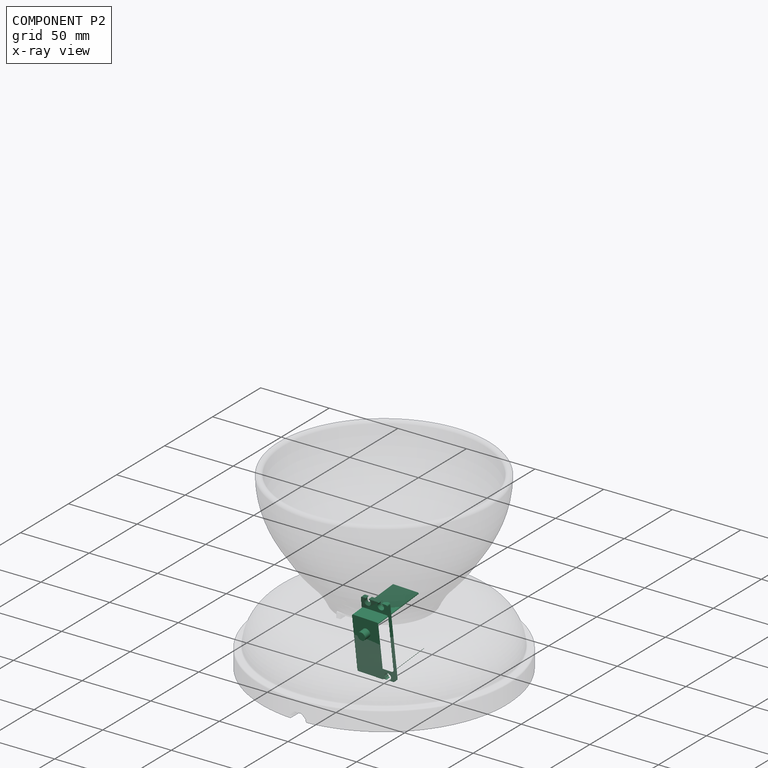
[diagram: component P2 — x-ray view]
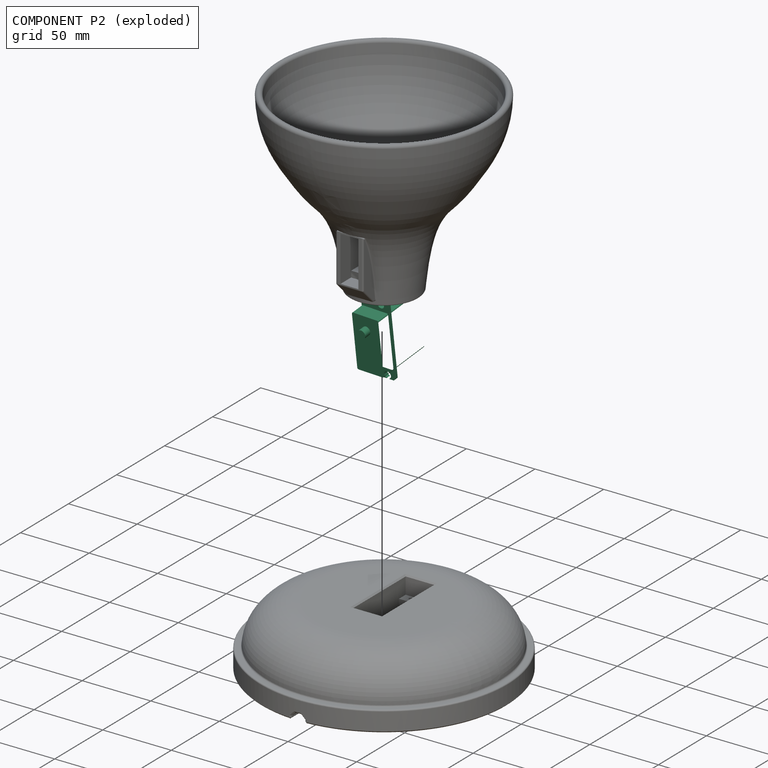
[diagram: component P2 — exploded]
COMPONENT P2 — recipe-attached ("DS3218MG Servo", modeled in this document).
Held by: resting contact with P0 (derived edge); resting contact with P1 (derived edge).
Construction recipe (the document's own serialized feature program — sketch geometry with constraints, then the solid features built on it; lengths are millimeters unless a unit is written):

FEATURE [Sketcher::SketchObject] Sketch021
  ArcFitTolerance = 1e-06
  AttachmentSupport = -> [XY_Plane009]
  FullyConstrained = true
  MakeInternals = false
  MapMode = 5
  sketch-geometry (6):
    g0: Circle CenterX=0 CenterY=0 CenterZ=0 NormalX=0 NormalY=0 NormalZ=1 AngleXU=0 Radius=3
    g1: LineSegment StartX=-10 StartY=-30 StartZ=0 EndX=10 EndY=-30 EndZ=0
    g2: LineSegment StartX=10 StartY=-30 StartZ=0 EndX=10 EndY=10 EndZ=0
    g3: LineSegment StartX=-10 StartY=10 StartZ=0 EndX=-10 EndY=-30 EndZ=0
    g4: LineSegment StartX=10 StartY=10 StartZ=0 EndX=0 EndY=10 EndZ=0
    g5: LineSegment StartX=0 StartY=10 StartZ=0 EndX=-10 EndY=10 EndZ=0
  constraints (17):
    c: Coincident(g0,g-1)
    c: Coincident(g1,g2)
    c: Coincident(g2,g4)
    c: Coincident(g5,g3)
    c: Coincident(g3,g1)
    c: Horizontal(g1)
    c: Vertical(g2)
    c: Vertical(g3)
    c: Coincident(g4,g5)
    c: Horizontal(g4)
    c: Horizontal(g5)
    c: Equal(g5,g4)
    c: PointOnObject(g4,g-2)
    c: DistanceY(g0,g4) = 10
    c: DistanceY(g2,g2) = 40
    c: Distance(g1,g1) = 20
    c: Diameter(g0) = 6
FEATURE [PartDesign::Pad] Pad
  Direction = (0,0,1)
  Length = 27.8
  Length2 = 10
  Profile = -> Sketch021 [Edge6,Edge2,Edge3,Edge4,Edge5]
  ReferenceAxis = -> Sketch021 [N_Axis]
  Reversed = true
  Suppressed = false
  Type = 0
FEATURE [Sketcher::SketchObject] Sketch022
  ArcFitTolerance = 1e-06
  AttachmentSupport = -> [XY_Plane009]
  ExternalGeometry = -> [Pad]
  FullyConstrained = false
  MakeInternals = false
  MapMode = 5
  sketch-geometry (41):
    g0: LineSegment StartX=-10 StartY=-37.25 StartZ=0 EndX=-6.12702 EndY=-37.25 EndZ=0
    g1: LineSegment StartX=10 StartY=17.25 StartZ=0 EndX=6.12702 EndY=17.25 EndZ=0
    g2: LineSegment StartX=-10 StartY=17.25 StartZ=0 EndX=-10 EndY=10 EndZ=0
    g3: LineSegment StartX=-10 StartY=10 StartZ=0 EndX=-10 EndY=-30 EndZ=0
    g4: LineSegment StartX=-10 StartY=-30 StartZ=0 EndX=-10 EndY=-37.25 EndZ=0
    g5: ArcOfCircle CenterX=-5 CenterY=14.75 CenterZ=0 NormalX=0 NormalY=0 NormalZ=1 AngleXU=0 Radius=2.5 StartAngle=2.01419 EndAngle=7.41059
    g6: ArcOfCircle CenterX=5 CenterY=14.75 CenterZ=0 NormalX=0 NormalY=0 NormalZ=1 AngleXU=0 Radius=2.5 StartAngle=2.01419 EndAngle=7.41059
    g7: LineSegment [constr] StartX=-5 StartY=14.75 StartZ=0 EndX=-2.49e-14 EndY=14.75 EndZ=0
    g8: LineSegment [constr] StartX=-2.49e-14 StartY=14.75 StartZ=0 EndX=5 EndY=14.75 EndZ=0
    g9: LineSegment [constr] StartX=-5 StartY=-34.75 StartZ=0 EndX=0 EndY=-34.75 EndZ=0
    g10: LineSegment [constr] StartX=0 StartY=-34.75 StartZ=0 EndX=5 EndY=-34.75 EndZ=0
    g11: ArcOfCircle CenterX=-6.12702 CenterY=17.123 CenterZ=0 NormalX=0 NormalY=0 NormalZ=1 AngleXU=0 Radius=0.127017 StartAngle=5.15579 EndAngle=7.85398
    g12: GeomPoint [constr] X=-6 Y=17.123 Z=0
    g13: LineSegment [constr] StartX=-6.12702 StartY=17.123 StartZ=0 EndX=-6 EndY=17.123 EndZ=0
    g14: ArcOfCircle CenterX=-3.87298 CenterY=17.123 CenterZ=0 NormalX=0 NormalY=0 NormalZ=1 AngleXU=0 Radius=0.127017 StartAngle=1.5708 EndAngle=4.26899
    g15: GeomPoint X=-4 Y=17.123 Z=0
    g16: LineSegment [constr] StartX=-4 StartY=17.123 StartZ=0 EndX=-3.87298 EndY=17.123 EndZ=0
    g17: LineSegment StartX=-6.12702 StartY=17.25 StartZ=0 EndX=-10 EndY=17.25 EndZ=0
    g18: ArcOfCircle CenterX=3.87298 CenterY=17.123 CenterZ=0 NormalX=0 NormalY=0 NormalZ=1 AngleXU=0 Radius=0.127017 StartAngle=5.15579 EndAngle=7.85398
    g19: ArcOfCircle CenterX=6.12702 CenterY=17.123 CenterZ=0 NormalX=0 NormalY=0 NormalZ=1 AngleXU=0 Radius=0.127017 StartAngle=1.5708 EndAngle=4.26899
    g20: LineSegment [constr] StartX=3.87298 StartY=17.123 StartZ=0 EndX=6.12702 EndY=17.123 EndZ=0
    g21: GeomPoint [constr] X=4 Y=17.123 Z=0
    g22: GeomPoint [constr] X=6 Y=17.123 Z=0
    g23: LineSegment [constr] StartX=4 StartY=17.123 StartZ=0 EndX=6 EndY=17.123 EndZ=0
    g24: LineSegment StartX=3.87298 StartY=17.25 StartZ=0 EndX=-3.87298 EndY=17.25 EndZ=0
    g25: LineSegment StartX=10 StartY=17.25 StartZ=0 EndX=10 EndY=-37.25 EndZ=0
    g26: ArcOfCircle CenterX=-6.12702 CenterY=-37.123 CenterZ=0 NormalX=0 NormalY=0 NormalZ=1 AngleXU=0 Radius=0.127017 StartAngle=4.71239 EndAngle=7.41059
    g27: ArcOfCircle CenterX=6.12702 CenterY=-37.123 CenterZ=0 NormalX=0 NormalY=0 NormalZ=1 AngleXU=0 Radius=0.127017 StartAngle=2.01419 EndAngle=4.71239
    g28: ArcOfCircle CenterX=-3.87298 CenterY=-37.123 CenterZ=0 NormalX=0 NormalY=0 NormalZ=1 AngleXU=0 Radius=0.127017 StartAngle=2.01419 EndAngle=4.71239
    g29: ArcOfCircle CenterX=3.87298 CenterY=-37.123 CenterZ=0 NormalX=0 NormalY=0 NormalZ=1 AngleXU=0 Radius=0.127017 StartAngle=4.71239 EndAngle=7.41059
    g30: LineSegment [constr] StartX=-6 StartY=-37.123 StartZ=0 EndX=-4 EndY=-37.123 EndZ=0
    g31: LineSegment [constr] StartX=4 StartY=-37.123 StartZ=0 EndX=6 EndY=-37.123 EndZ=0
    g32: GeomPoint [constr] X=-5.99129 Y=-37.0451 Z=0
    g33: ArcOfCircle CenterX=-5 CenterY=-34.75 CenterZ=0 NormalX=0 NormalY=0 NormalZ=1 AngleXU=0 Radius=2.5 StartAngle=5.15579 EndAngle=10.5522
    g34: LineSegment StartX=-3.87298 StartY=-37.25 StartZ=0 EndX=3.87298 EndY=-37.25 EndZ=0
    g35: ArcOfCircle CenterX=5 CenterY=-34.75 CenterZ=0 NormalX=0 NormalY=0 NormalZ=1 AngleXU=0 Radius=2.5 StartAngle=5.15579 EndAngle=10.5522
    g36: ArcOfCircle [constr] CenterX=-5 CenterY=-34.75 CenterZ=0 NormalX=0 NormalY=0 NormalZ=1 AngleXU=0 Radius=2.5 StartAngle=4.30467 EndAngle=5.15579
    g37: LineSegment [constr] StartX=-6.12702 StartY=-37.25 StartZ=0 EndX=-3.87298 EndY=-37.25 EndZ=0
    g38: LineSegment StartX=6.12702 StartY=-37.25 StartZ=0 EndX=10 EndY=-37.25 EndZ=0
    g39: ArcOfCircle [constr] CenterX=-5 CenterY=14.75 CenterZ=0 NormalX=0 NormalY=0 NormalZ=1 AngleXU=0 Radius=2.5 StartAngle=1.09186 EndAngle=2.01419
    g40: LineSegment [constr] StartX=-6.12702 StartY=17.25 StartZ=0 EndX=-3.87298 EndY=17.25 EndZ=0
  constraints (100):
    c: Coincident(g17,g2)
    c: Coincident(g4,g0)
    c: Horizontal(g0)
    c: Coincident(g2,g3)
    c: Coincident(g3,g4)
    c: Coincident(g2,g-4)
    c: Coincident(g3,g-7)
    c: Equal(g2,g4)
    c: Equal(g5,g6)
    c: DistanceX(g5,g6) = 10
    c: Coincident(g7,g5)
    c: Coincident(g8,g6)
    c: Coincident(g7,g8)
    c: Equal(g7,g8)
    c: Coincident(g9,g10)
    c: Equal(g9,g10)
    c: Equal(g10,g8)
    c: PointOnObject(g9,g-2)
    c: DistanceY(g38,g1) = 54.5
    c: Horizontal(g10)
    c: Vertical(g2)
    c: Vertical(g4)
    c: PointOnObject(g12,g11)
    c: Coincident(g13,g11)
    c: Coincident(g13,g12)
    c: Horizontal(g13)
    c: PointOnObject(g15,g14)
    c: Coincident(g16,g15)
    c: Coincident(g16,g14)
    c: Tangent(g13,g16)
    c: DistanceX(g12,g15) = 2
    c: Tangent(g11,g17) = -1.5708
    c: Tangent(g11,g5) = 1.5708
    c: Tangent(g14,g5) = 1.5708
    c: Equal(g18,g19)
    c: Coincident(g20,g18)
    c: Coincident(g20,g19)
    c: Horizontal(g20)
    c: PointOnObject(g21,g20)
    c: PointOnObject(g22,g20)
    c: PointOnObject(g21,g18)
    c: PointOnObject(g22,g19)
    c: Coincident(g23,g21)
    c: Coincident(g23,g22)
    c: Symmetric(g14,g18,g-2)
    c: Tangent(g19,g6) = 1.5708
    c: Tangent(g18,g24) = -1.5708
    c: Tangent(g6,g18) = 1.5708
    c: Tangent(g14,g24) = -1.5708
    c: Coincident(g25,g1)
    c: Coincident(g25,g38)
    c: Horizontal(g8)
    c: Equal(g26,g28)
    c: Equal(g29,g27)
    c: PointOnObject(g30,g28)
    c: Horizontal(g30)
    c: PointOnObject(g31,g29)
    c: PointOnObject(g31,g27)
    c: Perpendicular(g26,g30)
    c: Perpendicular(g29,g31)
    c: Horizontal(g31)
    c: Equal(g30,g31)
    c: DistanceX(g30,g30) = 2
    c: Coincident(g33,g26) = 1.5708
    c: Tangent(g0,g26) = -1.5708
    c: Tangent(g34,g28) = -1.5708
    c: Coincident(g35,g29) = 1.5708
    c: Coincident(g10,g35)
    c: Tangent(g0,g34)
    c: Coincident(g9,g33)
    c: Horizontal(g9)
    c: Equal(g33,g35)
    c: Tangent(g17,g24)
    c: Tangent(g25,g-6)
    c: Tangent(g26,g33) = 1.5708
    c: DistanceY(g9,g5) = 49.5
    c: Tangent(g28,g33) = 1.5708
    c: Coincident(g36,g32)
    c: Coincident(g36,g28)
    c: Coincident(g37,g0)
    c: Coincident(g37,g28)
    c: Tangent(g36,g37)
    c: Tangent(g29,g35) = 1.5708
    c: Tangent(g27,g35) = 1.5708
    c: Tangent(g34,g29) = -1.5708
    c: Tangent(g38,g27) = -1.5708
    c: Coincident(g36,g9)
    c: PointOnObject(g30,g26)
    c: Perpendicular(g27,g31)
    c: Perpendicular(g25,g38)
    c: Tangent(g19,g1) = -1.5708
    c: Horizontal(g7)
    c: Coincident(g39,g5)
    c: Coincident(g39,g5)
    c: Horizontal(g1)
    c: Tangent(g40,g11) = 1.5708
    c: Coincident(g40,g14)
    c: Horizontal(g40)
    c: Tangent(g39,g40)
    c: Equal(g5,g33)
FEATURE [PartDesign::Pad] Pad005
  BaseFeature = -> Pad
  Direction = (0,0,1)
  Length = 3.1
  Length2 = 10
  Profile = -> Sketch022
  ReferenceAxis = -> Sketch022 [N_Axis]
  Suppressed = false
  Type = 0
FEATURE [Sketcher::SketchObject] Sketch023
  ArcFitTolerance = 1e-06
  AttachmentSupport = -> [Pad005]
  ExternalGeometry = -> [Pad005]
  FullyConstrained = true
  MakeInternals = false
  MapMode = 5
  Placement = pos=(0,0,3.1) rot=(0,0,1;0rad)
  sketch-geometry (4):
    g0: LineSegment StartX=-10 StartY=-30 StartZ=0 EndX=10 EndY=-30 EndZ=0
    g1: LineSegment StartX=10 StartY=-30 StartZ=0 EndX=10 EndY=10 EndZ=0
    g2: LineSegment StartX=10 StartY=10 StartZ=0 EndX=-10 EndY=10 EndZ=0
    g3: LineSegment StartX=-10 StartY=10 StartZ=0 EndX=-10 EndY=-30 EndZ=0
  constraints (10):
    c: Coincident(g0,g1)
    c: Coincident(g1,g2)
    c: Coincident(g2,g3)
    c: Coincident(g3,g0)
    c: Horizontal(g0)
    c: Horizontal(g2)
    c: Vertical(g1)
    c: Vertical(g3)
    c: Coincident(g0,g-3)
    c: Coincident(g1,g-4)
FEATURE [PartDesign::Pad] Pad006
  BaseFeature = -> Pad005
  Direction = (0,0,1)
  Length = 9.6
  Length2 = 10
  Profile = -> Sketch023
  ReferenceAxis = -> Sketch023 [N_Axis]
  Suppressed = false
  Type = 0
FEATURE [Sketcher::SketchObject] Sketch024
  ArcFitTolerance = 1e-06
  AttachmentSupport = -> [Pad006]
  FullyConstrained = true
  MakeInternals = false
  MapMode = 5
  Placement = pos=(0,0,12.7) rot=(0,0,1;0rad)
  sketch-geometry (1):
    g0: Circle CenterX=0 CenterY=0 CenterZ=0 NormalX=0 NormalY=0 NormalZ=1 AngleXU=0 Radius=3
  constraints (2):
    c: Diameter(g0) = 6
    c: Coincident(g0,g-1)
FEATURE [PartDesign::Pad] Pad007
  BaseFeature = -> Pad006
  Direction = (0,0,1)
  Length = 5
  Length2 = 10
  Profile = -> Sketch024
  ReferenceAxis = -> Sketch024 [N_Axis]
  Suppressed = false
  Type = 0
FEATURE [PartDesign::Fillet] Fillet010
  Base = -> Pad007 [Edge1,Edge45,Edge41,Edge61,Edge89,Edge16,Edge2,Edge46,Edge43,Edge8,Edge91,Edge63]
  BaseFeature = -> Pad007
  Radius = 1
  SupportTransform = false
  Suppressed = false
  UseAllEdges = false
FEATURE [PartDesign::Chamfer] Chamfer003
  Angle = 45
  Base = -> Fillet010 [Face5]
  BaseFeature = -> Fillet010
  ChamferType = 0
  FlipDirection = false
  Size = 1
  Size2 = 1
  SupportTransform = false
  Suppressed = false
  UseAllEdges = false
FEATURE [PartDesign::Body] Body004
  AllowCompound = false
  Group = -> [Sketch021,Pad,Sketch022,Pad005,Sketch023,Pad006,Sketch024,Pad007,Fillet010,Chamfer003]
  Origin = -> Origin009
  Tip = -> Chamfer003
PROVENANCE & LICENSES
Assembly and component geometry: a FreeCAD (.FCStd) document from a public repository crawl; components, placements and joints were extracted with FreeCAD and each solid tessellated.
Construction recipes: the document's own serialized feature recipes (and, for linked parts, the recipes of companion documents from the same project).
License: as declared in the source repository (recorded in the dataset sidecar).
Joints: native FreeCAD joints and A2plus constraints are mapped to standard mate types; edges marked 'derived from contact' connect touching components and are measured from the geometry, not modeled.
Verification: 3 of this assembly's 3 components carry a construction recipe (3 from this document itself); the rest are geometry-only. Every component's tessellation passed the extraction mesh gates (mesh-volume checksum against the B-rep where available, bounding-box inflation <= 2%).
Renders: orthographic iso camera (az 35 / el 25); the floor grid conveys scale (grid pitch printed in each image; no ruler). In the exploded view each component is displaced by its stored offset vector: the offsets alone carry the explosion direction (mate normal/axis signs are not orientation cues and do not encode it), and separation distances are assigned per mate-chain, not proportionally to assembly-order depth.
